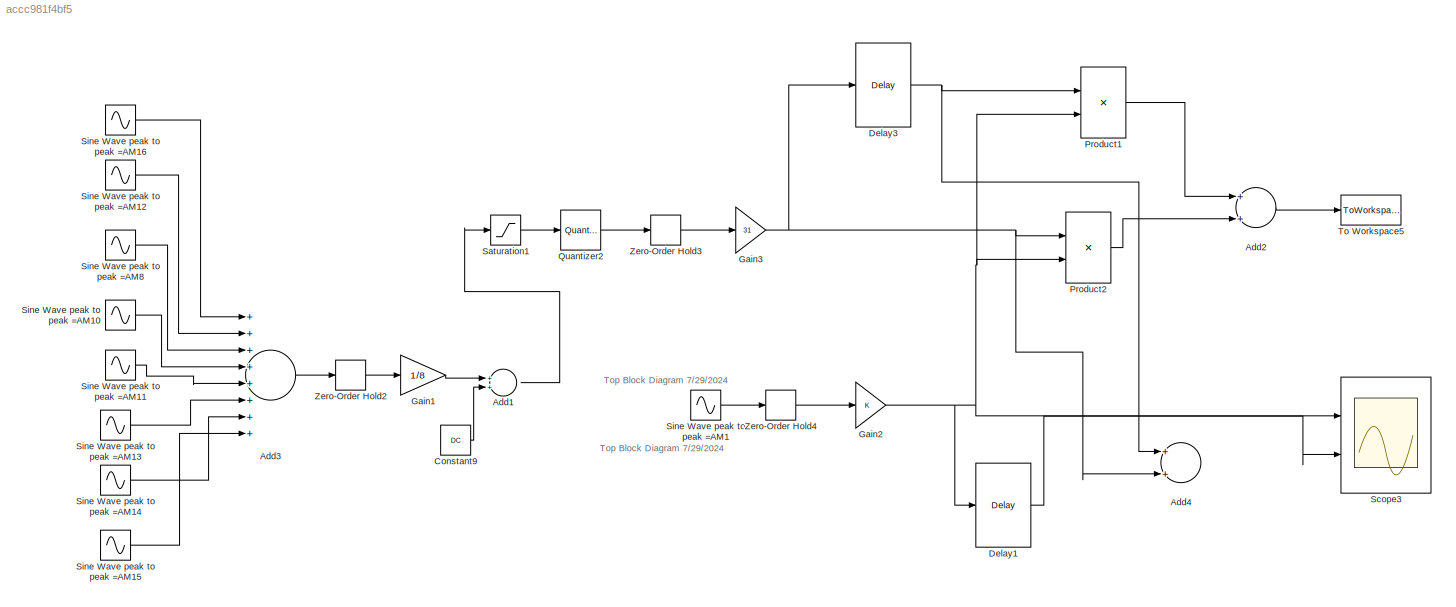
MODEL slx_accc981f4bf5
KIND model
CONFIG AbsTol = 1e-6
CONFIG FixedStep = 1/fs/8
CONFIG MaxStep = auto
CONFIG MinStep = auto
CONFIG RelTol = 1e-3
CONFIG SampleTimeConstraint = Unconstrained
CONFIG Solver = FixedStepAuto
CONFIG SolverMode = SingleTasking
CONFIG SolverName = FixedStepAuto
CONFIG StartTime = 0.0
CONFIG StopTime = 1/fs*(4*nn+ni)
BLOCK [Sum] Add1
  InputSameDT = off
  OutDataTypeStr = Inherit: Inherit via internal rule
  Ports = [2, 1]
  SaturateOnIntegerOverflow = off
BLOCK [Sum] Add2
  InputSameDT = off
  OutDataTypeStr = Inherit: Inherit via internal rule
  Ports = [2, 1]
  SaturateOnIntegerOverflow = off
BLOCK [Sum] Add3
  InputSameDT = off
  Inputs = ++++++++
  OutDataTypeStr = Inherit: Inherit via internal rule
  Ports = [8, 1]
  SaturateOnIntegerOverflow = off
BLOCK [Sum] Add4
  InputSameDT = off
  OutDataTypeStr = Inherit: Inherit via internal rule
  Ports = [2, 1]
  SaturateOnIntegerOverflow = off
BLOCK [Constant] Constant9
  Value = DC
BLOCK [Delay] Delay1
  DelayLength = 1
  InitialCondition = 0
  InputPortMap = u0
  Ports = [1, 1]
  SampleTime = 1/fs/8
BLOCK [Delay] Delay3
  DelayLength = 8*4+DD
  InitialCondition = 0
  InputPortMap = u0
  Ports = [1, 1]
  SampleTime = 1/fs/8
BLOCK [Gain] Gain1
  Gain = 1/8
  OutDataTypeStr = Inherit: Inherit via internal rule
  ParamDataTypeStr = Inherit: Inherit via internal rule
  SaturateOnIntegerOverflow = off
BLOCK [Gain] Gain2
  OutDataTypeStr = Inherit: Inherit via internal rule
  ParamDataTypeStr = Inherit: Inherit via internal rule
  SaturateOnIntegerOverflow = off
BLOCK [Gain] Gain3
  Gain = 31
  OutDataTypeStr = Inherit: Inherit via internal rule
  ParamDataTypeStr = Inherit: Inherit via internal rule
  SaturateOnIntegerOverflow = off
BLOCK [Product] Product1
  InputSameDT = off
  OutDataTypeStr = Inherit: Inherit via internal rule
  Ports = [2, 1]
  RndMeth = Floor
  SaturateOnIntegerOverflow = off
BLOCK [Product] Product2
  InputSameDT = off
  OutDataTypeStr = Inherit: Inherit via internal rule
  Ports = [2, 1]
  RndMeth = Floor
  SaturateOnIntegerOverflow = off
BLOCK [Quantizer] Quantizer2
  LinearizeAsGain = off
  QuantizationInterval = 1/2^5
BLOCK [Saturate] Saturation1
  InputPortMap = u0
  LowerLimit = -1
  Ports = [1, 1]
  UpperLimit = 1
BLOCK [Scope] Scope3
  NumInputPorts = 2
  Ports = [2]
  ScopeSpecificationString = Simulink.scopes.TimeScopeBlockCfg('CurrentConfiguration', extmgr.ConfigurationSet(extmgr.Configuration('Core','General UI',true),extmgr.Configuration('Core','Source UI',true),extmgr.Configuration('Sources','WiredSimulink',true,'DataLoggingVariableName','ScopeData2','DataLoggingLimitDataPoints',true,'DataLoggingSaveFormat','Array','DataLoggingDecimation','1','DataLoggingDecimateData',true,'SampleTi...<+1825ch>
BLOCK [Sin] Sine Wave peak to peak =AM1
  Amplitude = AM
  Frequency = 2*pi*Fc
  Phase = pi/2
  Ports = [0, 1]
  SampleTime = 2/fs
BLOCK [Sin] Sine Wave peak to peak =AM10
  Amplitude = AM
  Frequency = 2*pi*fin4
  Ports = [0, 1]
  SampleTime = 8/fs
BLOCK [Sin] Sine Wave peak to peak =AM11
  Amplitude = AM
  Frequency = 2*pi*fin5
  Ports = [0, 1]
  SampleTime = 8/fs
BLOCK [Sin] Sine Wave peak to peak =AM12
  Amplitude = AM
  Frequency = 2*pi*fin2
  Ports = [0, 1]
  SampleTime = 8/fs
BLOCK [Sin] Sine Wave peak to peak =AM13
  Amplitude = AM
  Frequency = 2*pi*fin6
  Ports = [0, 1]
  SampleTime = 8/fs
BLOCK [Sin] Sine Wave peak to peak =AM14
  Amplitude = AM
  Frequency = 2*pi*fin7
  Ports = [0, 1]
  SampleTime = 8/fs
BLOCK [Sin] Sine Wave peak to peak =AM15
  Amplitude = AM
  Frequency = 2*pi*fin8
  Ports = [0, 1]
  SampleTime = 8/fs
BLOCK [Sin] Sine Wave peak to peak =AM16
  Amplitude = AM
  Frequency = 2*pi*fin1
  Ports = [0, 1]
  SampleTime = 8/fs
BLOCK [Sin] Sine Wave peak to peak =AM8
  Amplitude = AM
  Frequency = 2*pi*fin3
  Ports = [0, 1]
  SampleTime = 8/fs
BLOCK [ToWorkspace] To Workspace5
  MaxDataPoints = inf
  Ports = [1]
  SampleTime = 1/fs/8
  VariableName = y5
BLOCK [ZeroOrderHold] Zero-Order Hold2
  SampleTime = 8/fs
BLOCK [ZeroOrderHold] Zero-Order Hold3
  SampleTime = 1/fsrf
BLOCK [ZeroOrderHold] Zero-Order Hold4
  SampleTime = 2/fs
ANNOTATION (root): Top Block Diagram 7/29/2024
LINE Add1:1 -> Saturation1:1
LINE Add2:1 -> To Workspace5:1
LINE Add3:1 -> Zero-Order Hold2:1
LINE Constant9:1 -> Add1:2
LINE Delay1:1 -> Scope3:2
NET Delay3:1 -> Add4:1, Product1:1
LINE Gain1:1 -> Add1:1
NET Gain2:1 -> Delay1:1, Product1:2, Product2:2, Scope3:1
NET Gain3:1 -> Add4:2, Delay3:1, Product2:1
LINE Product1:1 -> Add2:1
LINE Product2:1 -> Add2:2
LINE Quantizer2:1 -> Zero-Order Hold3:1
LINE Saturation1:1 -> Quantizer2:1
LINE Sine Wave peak to peak =AM10:1 -> Add3:4
LINE Sine Wave peak to peak =AM11:1 -> Add3:5
LINE Sine Wave peak to peak =AM12:1 -> Add3:2
LINE Sine Wave peak to peak =AM13:1 -> Add3:6
LINE Sine Wave peak to peak =AM14:1 -> Add3:7
LINE Sine Wave peak to peak =AM15:1 -> Add3:8
LINE Sine Wave peak to peak =AM16:1 -> Add3:1
LINE Sine Wave peak to peak =AM1:1 -> Zero-Order Hold4:1
LINE Sine Wave peak to peak =AM8:1 -> Add3:3
LINE Zero-Order Hold2:1 -> Gain1:1
LINE Zero-Order Hold3:1 -> Gain3:1
LINE Zero-Order Hold4:1 -> Gain2:1
note: NET lines group one-source signal fan-out (src -> all destinations, sorted); 1:1 wires keep LINE
